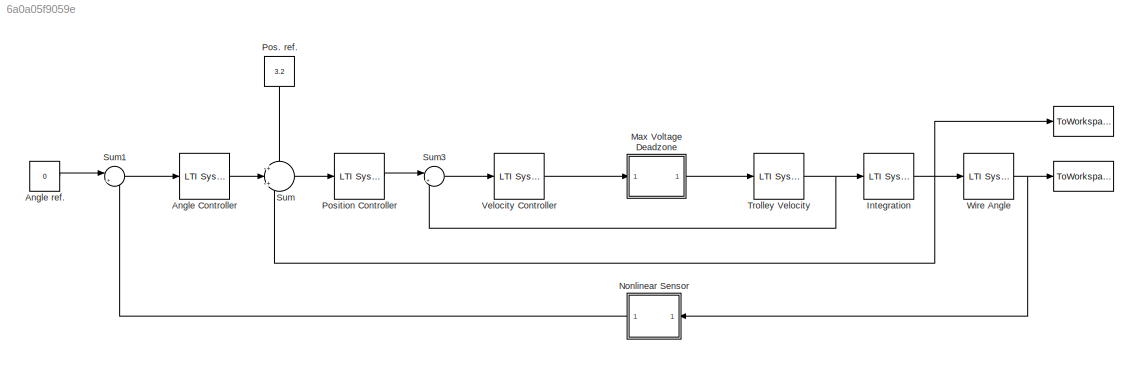
MODEL slx_6a0a05f9059e
KIND model
CONFIG AbsTol = auto
CONFIG FixedStep = auto
CONFIG MaxStep = auto
CONFIG MinStep = auto
CONFIG RelTol = 1e-3
CONFIG SampleTimeConstraint = Unconstrained
CONFIG Solver = ode45
CONFIG SolverMode = Auto
CONFIG SolverName = ode45
CONFIG StartTime = 0.0
CONFIG StopTime = 25
BLOCK [ToWorkspace]   
  FixptAsFi = on
  MaxDataPoints = inf
  Ports = [1]
  SampleTime = -1
  Save2DSignal = 3-D array (concatenate along third dimension)
  SaveFormat = Timeseries
  VariableName = Angle
BLOCK [ToWorkspace]    
  FixptAsFi = on
  MaxDataPoints = inf
  Ports = [1]
  SampleTime = -1
  Save2DSignal = 3-D array (concatenate along third dimension)
  SaveFormat = Timeseries
  VariableName = Position
BLOCK [Reference] Angle Controller  REF=cstblocks/LTI System
  IC = []
  Ports = [1, 1]
  SourceBlock = cstblocks/LTI System
  SourceType = LTI Block
  sys = Ca
BLOCK [Constant] Angle ref.
  Value = 0
BLOCK [Reference] Integration  REF=cstblocks/LTI System
  IC = []
  Ports = [1, 1]
  SourceBlock = cstblocks/LTI System
  SourceType = LTI Block
  sys = 1/s
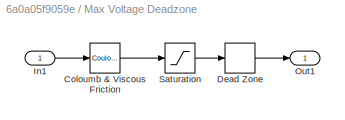
BLOCK [SubSystem] Max Voltage Deadzone
  Ports = [1, 1]
  RequestExecContextInheritance = off
BLOCK [Reference] Max Voltage Deadzone/Coloumb & Viscous Friction  REF=simulink/Discontinuities/Coulomb &
Viscous Friction
  Ports = [1, 1]
  SourceBlock = simulink/Discontinuities/Coulomb &\nViscous Friction
  SourceType = Coulombic and Viscous Friction
  gain = 1
  offset = [4.2]
BLOCK [DeadZone] Max Voltage Deadzone/Dead Zone
  LowerValue = -4.2
  UpperValue = 4.2
BLOCK [Inport] Max Voltage Deadzone/In1
  IconDisplay = Port number
BLOCK [Outport] Max Voltage Deadzone/Out1
  IconDisplay = Port number
BLOCK [Saturate] Max Voltage Deadzone/Saturation
  InputPortMap = u0
  LowerLimit = -12.5
  Ports = [1, 1]
  UpperLimit = 12.5
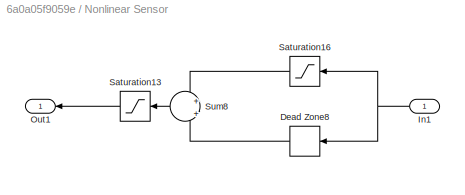
BLOCK [SubSystem] Nonlinear Sensor
  Ports = [1, 1]
  RequestExecContextInheritance = off
BLOCK [DeadZone] Nonlinear Sensor/Dead Zone8
  LowerValue = -0.3387
  UpperValue = 0.3227
BLOCK [Inport] Nonlinear Sensor/In1
  IconDisplay = Port number
BLOCK [Outport] Nonlinear Sensor/Out1
  IconDisplay = Port number
BLOCK [Saturate] Nonlinear Sensor/Saturation13
  InputPortMap = u0
  LowerLimit = -0.68
  Ports = [1, 1]
  UpperLimit = 0.664
BLOCK [Saturate] Nonlinear Sensor/Saturation16
  InputPortMap = u0
  LowerLimit = -0.1787
  Ports = [1, 1]
  UpperLimit = .1627
BLOCK [Sum] Nonlinear Sensor/Sum8
  IconShape = round
  InputSameDT = off
  Inputs = +|+
  OutDataTypeStr = Inherit: Inherit via internal rule
  Ports = [2, 1]
  SaturateOnIntegerOverflow = off
BLOCK [Constant] Pos. ref.
  Value = 3.2
BLOCK [Reference] Position Controller  REF=cstblocks/LTI System
  IC = []
  Ports = [1, 1]
  SourceBlock = cstblocks/LTI System
  SourceType = LTI Block
  sys = Cx
BLOCK [Sum] Sum
  IconShape = round
  InputSameDT = off
  Inputs = +|+|-
  OutDataTypeStr = Inherit: Inherit via internal rule
  Ports = [3, 1]
  SaturateOnIntegerOverflow = off
BLOCK [Sum] Sum1
  IconShape = round
  InputSameDT = off
  Inputs = |+-
  OutDataTypeStr = Inherit: Inherit via internal rule
  Ports = [2, 1]
  SaturateOnIntegerOverflow = off
BLOCK [Sum] Sum3
  IconShape = round
  InputSameDT = off
  Inputs = |+-
  OutDataTypeStr = Inherit: Inherit via internal rule
  Ports = [2, 1]
  SaturateOnIntegerOverflow = off
BLOCK [Reference] Trolley Velocity  REF=cstblocks/LTI System
  IC = []
  Ports = [1, 1]
  SourceBlock = cstblocks/LTI System
  SourceType = LTI Block
  sys = Gx
BLOCK [Reference] Velocity Controller  REF=cstblocks/LTI System
  IC = []
  Ports = [1, 1]
  SourceBlock = cstblocks/LTI System
  SourceType = LTI Block
  sys = Cv
BLOCK [Reference] Wire Angle  REF=cstblocks/LTI System
  IC = []
  Ports = [1, 1]
  SourceBlock = cstblocks/LTI System
  SourceType = LTI Block
  sys = W
LINE Angle Controller:1 -> Sum:2
LINE Angle ref.:1 -> Sum1:1
NET Integration:1 ->    :1, Sum:3, Wire Angle:1
LINE Max Voltage Deadzone/Coloumb & Viscous Friction:1 -> Max Voltage Deadzone/Saturation:1
LINE Max Voltage Deadzone/Dead Zone:1 -> Max Voltage Deadzone/Out1:1
LINE Max Voltage Deadzone/In1:1 -> Max Voltage Deadzone/Coloumb & Viscous Friction:1
LINE Max Voltage Deadzone/Saturation:1 -> Max Voltage Deadzone/Dead Zone:1
LINE Max Voltage Deadzone:1 -> Trolley Velocity:1
LINE Nonlinear Sensor/Dead Zone8:1 -> Nonlinear Sensor/Sum8:2
NET Nonlinear Sensor/In1:1 -> Nonlinear Sensor/Dead Zone8:1, Nonlinear Sensor/Saturation16:1
LINE Nonlinear Sensor/Saturation13:1 -> Nonlinear Sensor/Out1:1
LINE Nonlinear Sensor/Saturation16:1 -> Nonlinear Sensor/Sum8:1
LINE Nonlinear Sensor/Sum8:1 -> Nonlinear Sensor/Saturation13:1
LINE Nonlinear Sensor:1 -> Sum1:2
LINE Pos. ref.:1 -> Sum:1
LINE Position Controller:1 -> Sum3:1
LINE Sum1:1 -> Angle Controller:1
LINE Sum3:1 -> Velocity Controller:1
LINE Sum:1 -> Position Controller:1
NET Trolley Velocity:1 -> Integration:1, Sum3:2
LINE Velocity Controller:1 -> Max Voltage Deadzone:1
NET Wire Angle:1 ->   :1, Nonlinear Sensor:1
note: NET lines group one-source signal fan-out (src -> all destinations, sorted); 1:1 wires keep LINE
